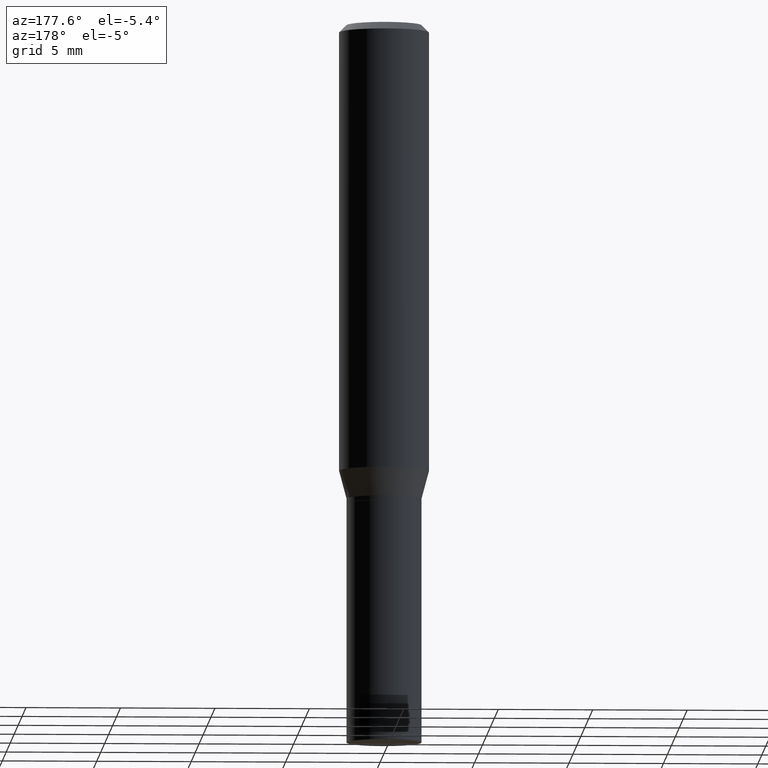
[diagram: clean part render]
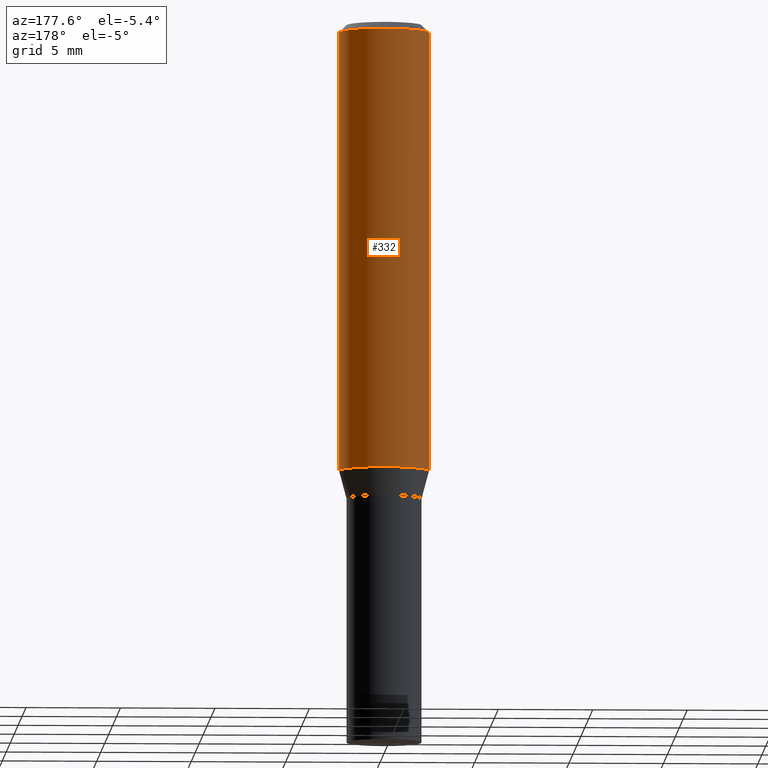
[diagram: same view with one face highlighted and labeled with its STEP entity id]
A machine part, auxiliary view. The second image highlights one B-rep face of the part: STEP entity #332.
In plain terms, the highlighted cylindrical surface (partial cylindrical patch) has radius 2.3813 mm, axis along (-0, 0, 1).
Its self-contained STEP definition (entity closure, byte-faithful):
#3 = EDGE_CURVE ( 'NONE', #154, #230, #199, .T. ) ;
#5 = AXIS2_PLACEMENT_3D ( 'NONE', #135, #377, #349 ) ;
#18 = CARTESIAN_POINT ( 'NONE',  ( -0.09375000000000001388, -9.863727894979499703E-16, -0.01499999999999999944 ) ) ;
#30 = DIRECTION ( 'NONE',  ( -2.445468806185136597E-29, 3.491481338843145583E-15, 1.000000000000000000 ) ) ;
#69 = ORIENTED_EDGE ( 'NONE', *, *, #401, .T. ) ;
#71 = ORIENTED_EDGE ( 'NONE', *, *, #192, .F. ) ;
#88 = LINE ( 'NONE', #378, #97 ) ;
#97 = VECTOR ( 'NONE', #416, 39.37007874015748143 ) ;
#103 = EDGE_LOOP ( 'NONE', ( #69, #371, #390, #71 ) ) ;
#115 = CIRCLE ( 'NONE', #351, 0.09375000000000001388 ) ;
#135 = CARTESIAN_POINT ( 'NONE',  ( 3.668203209277705088E-31, -5.237222008264718399E-17, -0.01499999999999999944 ) ) ;
#143 = CARTESIAN_POINT ( 'NONE',  ( 0.000000000000000000, 0.000000000000000000, 0.000000000000000000 ) ) ;
#148 = VECTOR ( 'NONE', #340, 39.37007874015748143 ) ;
#154 = VERTEX_POINT ( 'NONE', #316 ) ;
#157 = CARTESIAN_POINT ( 'NONE',  ( -0.09375000000000001388, 6.661338147750940229E-16, -4.611501647113973995E-30 ) ) ;
#179 = DIRECTION ( 'NONE',  ( -2.445468806185136597E-29, 3.491481338843145583E-15, 1.000000000000000000 ) ) ;
#192 = EDGE_CURVE ( 'NONE', #464, #327, #88, .T. ) ;
#199 = LINE ( 'NONE', #157, #148 ) ;
#224 = CARTESIAN_POINT ( 'NONE',  ( 0.09375000000000001388, -3.907293739496527425E-15, -0.9315934048615475138 ) ) ;
#225 = DIRECTION ( 'NONE',  ( 1.000000000000000000, -6.982962677686265922E-15, 4.876176775795935793E-29 ) ) ;
#230 = VERTEX_POINT ( 'NONE', #18 ) ;
#246 = EDGE_CURVE ( 'NONE', #327, #230, #335, .T. ) ;
#264 = CARTESIAN_POINT ( 'NONE',  ( 0.09375000000000001388, -7.070249711157346819E-16, -0.01499999999999999944 ) ) ;
#316 = CARTESIAN_POINT ( 'NONE',  ( -0.09375000000000001388, -2.586507173688346391E-15, -0.9315934048615475138 ) ) ;
#326 = DIRECTION ( 'NONE',  ( 1.000000000000000000, -6.982962677686266711E-15, 0.000000000000000000 ) ) ;
#327 = VERTEX_POINT ( 'NONE', #264 ) ;
#332 = ADVANCED_FACE ( 'NONE', ( #395 ), #429, .T. ) ;
#335 = CIRCLE ( 'NONE', #5, 0.09375000000000001388 ) ;
#340 = DIRECTION ( 'NONE',  ( -2.445468806185136877E-29, 3.491481338843145188E-15, 1.000000000000000000 ) ) ;
#349 = DIRECTION ( 'NONE',  ( 1.000000000000000000, -6.982962677686265922E-15, 0.000000000000000000 ) ) ;
#351 = AXIS2_PLACEMENT_3D ( 'NONE', #363, #179, #326 ) ;
#363 = CARTESIAN_POINT ( 'NONE',  ( 2.278182611636715174E-29, -3.252640988463440710E-15, -0.9315934048615475138 ) ) ;
#371 = ORIENTED_EDGE ( 'NONE', *, *, #3, .T. ) ;
#377 = DIRECTION ( 'NONE',  ( -2.445468806185136597E-29, 3.491481338843145583E-15, 1.000000000000000000 ) ) ;
#378 = CARTESIAN_POINT ( 'NONE',  ( 0.09375000000000001388, -6.546527510330875041E-16, 4.571415727308690506E-30 ) ) ;
#390 = ORIENTED_EDGE ( 'NONE', *, *, #246, .F. ) ;
#395 = FACE_OUTER_BOUND ( 'NONE', #103, .T. ) ;
#401 = EDGE_CURVE ( 'NONE', #464, #154, #115, .T. ) ;
#416 = DIRECTION ( 'NONE',  ( -2.445468806185136877E-29, 3.491481338843145188E-15, 1.000000000000000000 ) ) ;
#429 = CYLINDRICAL_SURFACE ( 'NONE', #454, 0.09375000000000001388 ) ;
#454 = AXIS2_PLACEMENT_3D ( 'NONE', #143, #30, #225 ) ;
#464 = VERTEX_POINT ( 'NONE', #224 ) ;